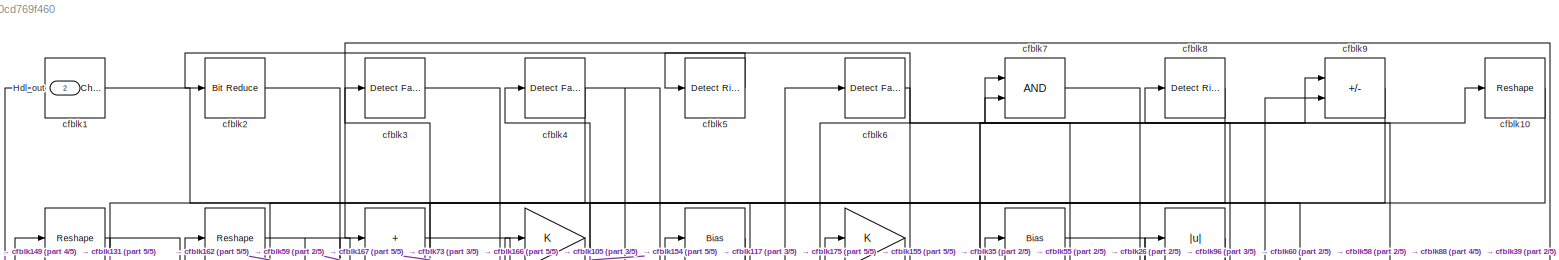
[diagram: root canvas - part 1/5, full width, top band]
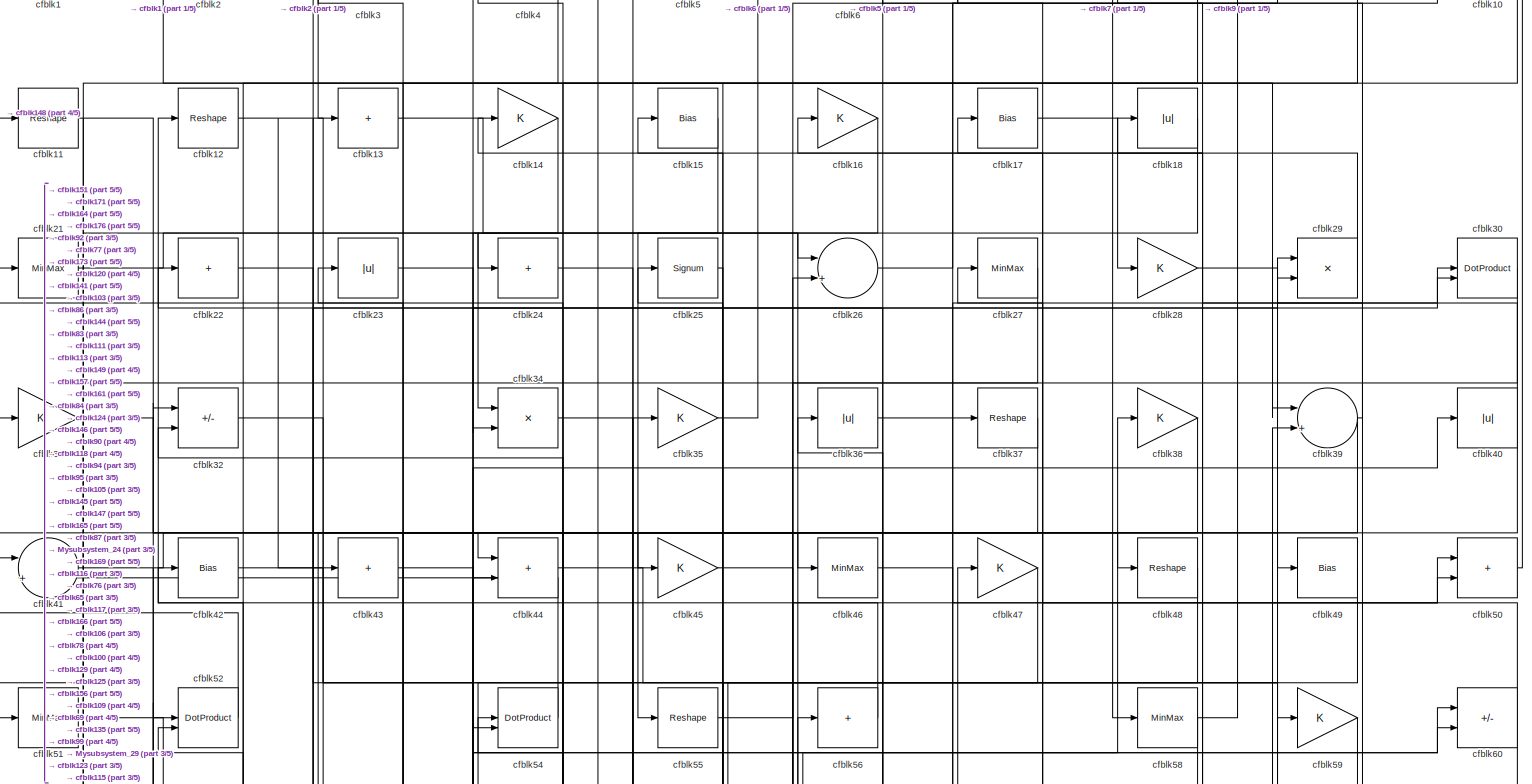
[diagram: root canvas - part 2/5, full width, top band]
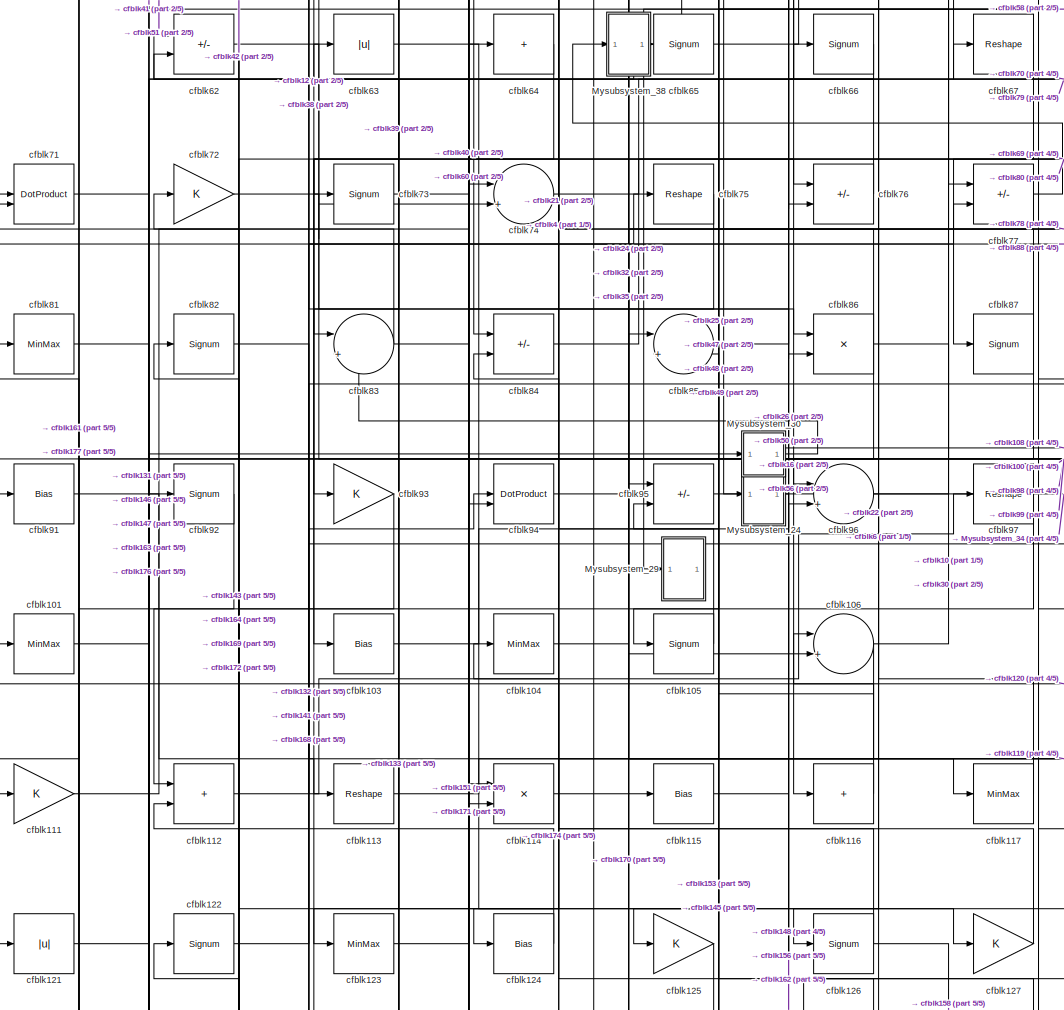
[diagram: root canvas - part 3/5, central region]
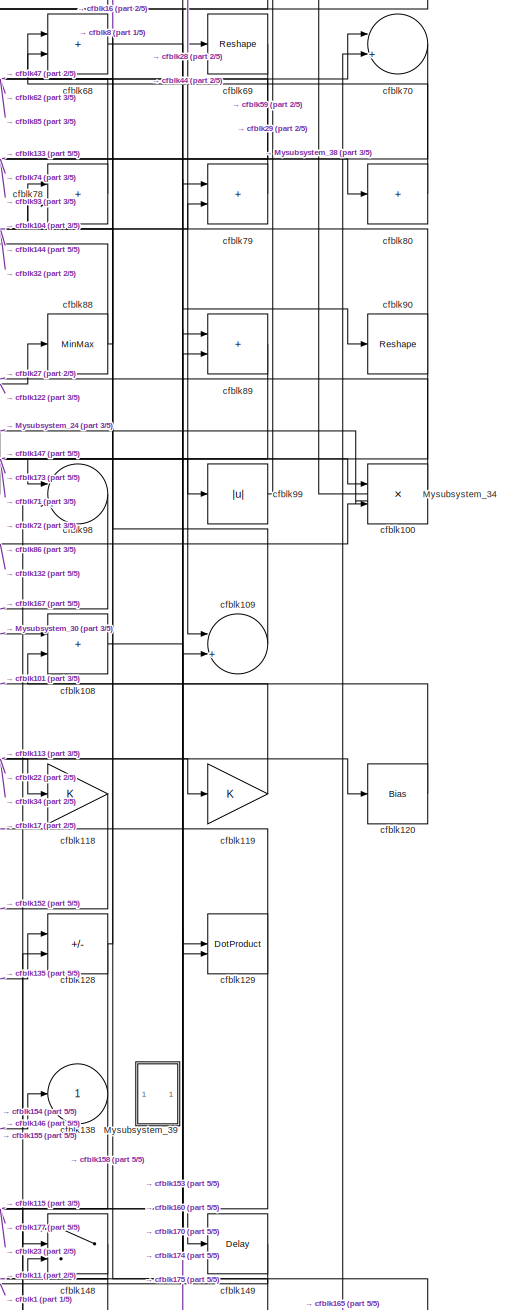
[diagram: root canvas - part 4/5, middle right region]
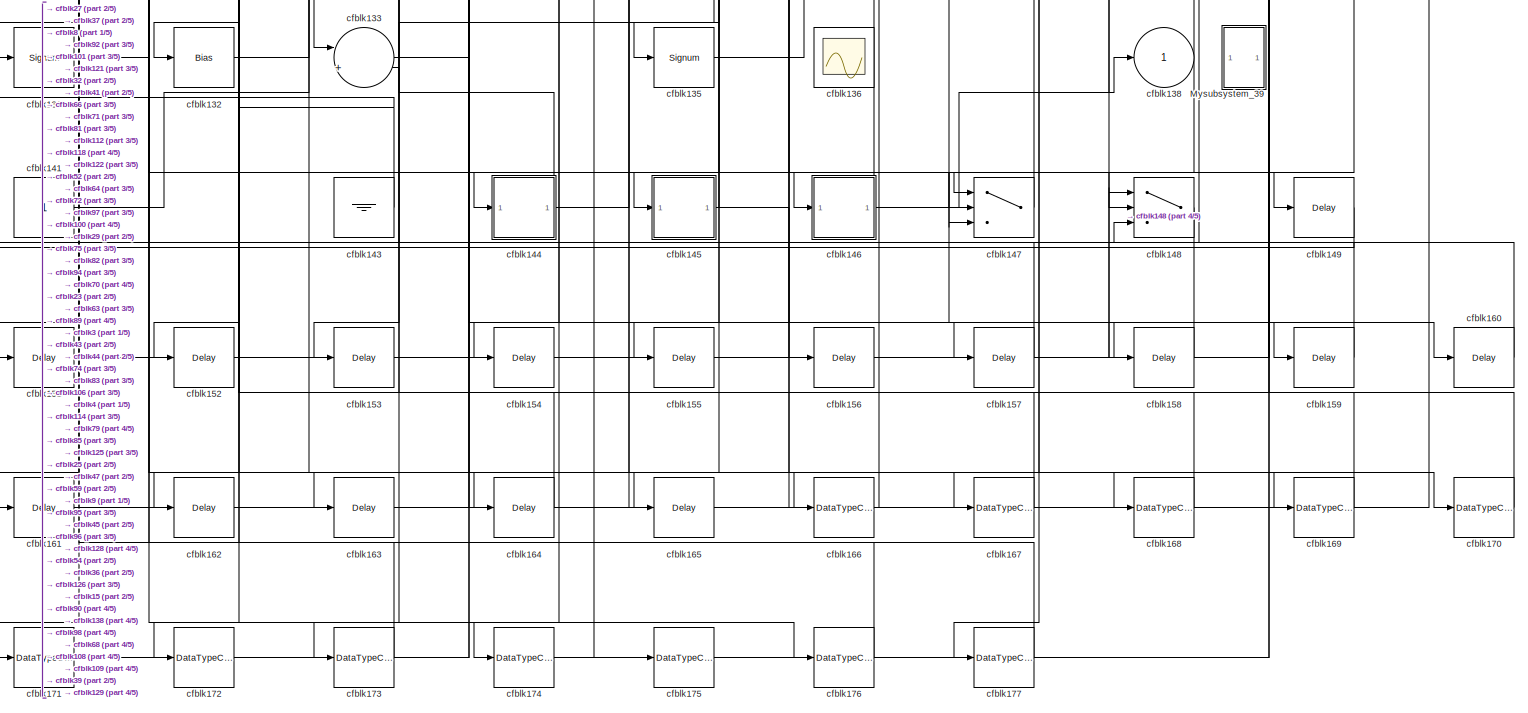
[diagram: root canvas - part 5/5, full width, bottom band]
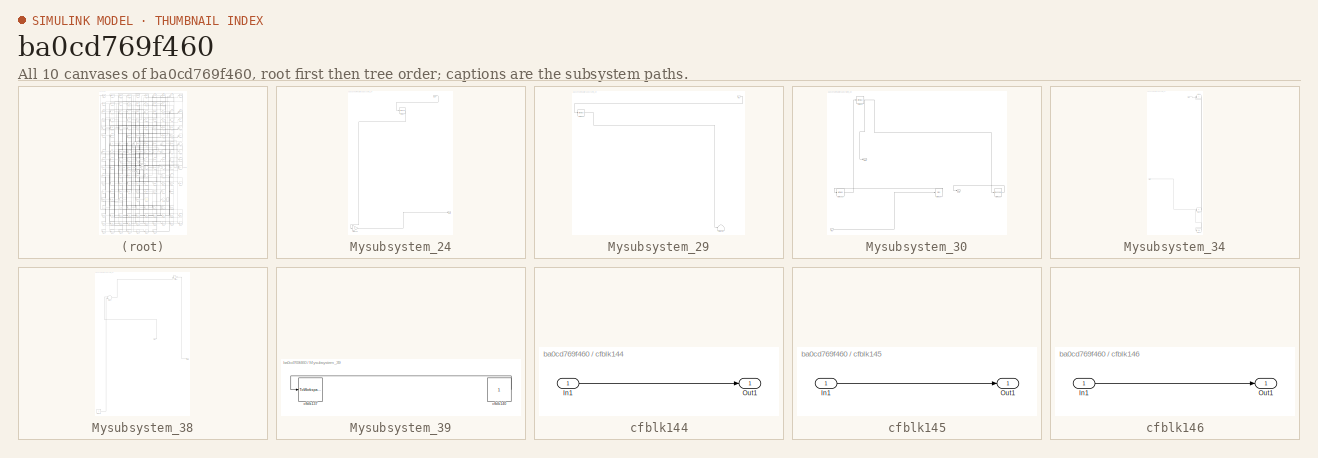
[diagram: thumbnail index - all 10 canvases of the model, root first then tree order]
MODEL slx_ba0cd769f460
KIND model
CONFIG AbsTol = auto
CONFIG EnableMultiTasking = off
CONFIG FixedStep = auto
CONFIG MaxStep = auto
CONFIG MinStep = auto
CONFIG RelTol = 1e-3
CONFIG SampleTimeConstraint = Unconstrained
CONFIG SolverName = VariableStepAuto
CONFIG StartTime = 0.0
CONFIG StopTime = 10.0
BLOCK [Outport] Hdl_out
  OutDataTypeStr = uint8
  Port = 2
BLOCK [SubSystem] Mysubsystem_24
  RTWFcnName = Mysubsystem_24
  RTWFcnNameOpts = User specified
  RTWFileNameOpts = Use function name
  RTWSystemCode = Reusable function
  TreatAsAtomicUnit = on
BLOCK [Inport] Mysubsystem_24/In1
BLOCK [Outport] Mysubsystem_24/Out1
BLOCK [Gain] Mysubsystem_24/cfblk134
BLOCK [Signum] Mysubsystem_24/cfblk57
BLOCK [SubSystem] Mysubsystem_29
  RTWFcnName = Mysubsystem_29
  RTWFcnNameOpts = User specified
  RTWFileNameOpts = Use function name
  RTWSystemCode = Reusable function
  TreatAsAtomicUnit = on
BLOCK [Inport] Mysubsystem_29/In1
BLOCK [Terminator] Mysubsystem_29/cfblk139
BLOCK [MinMax] Mysubsystem_29/cfblk61
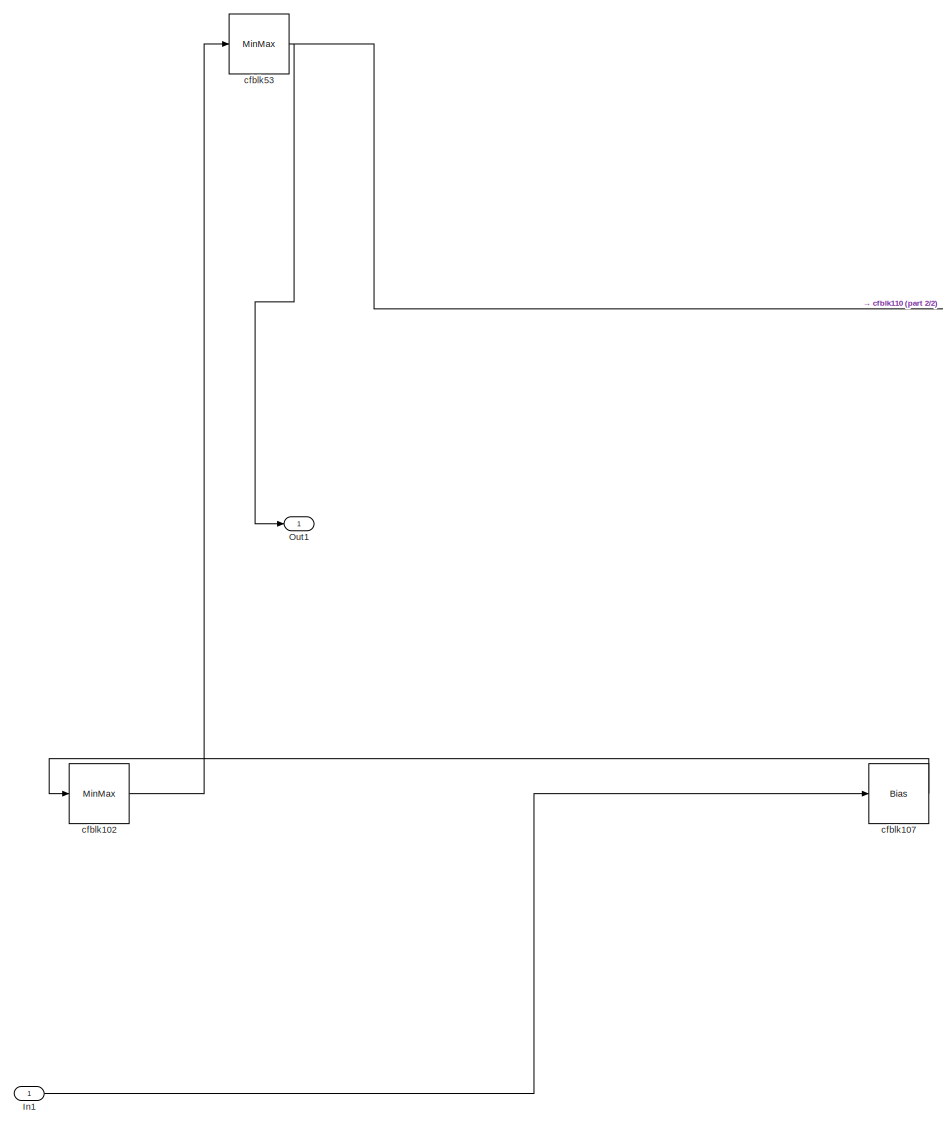
[diagram: Mysubsystem_30 - part 1/2, left side, full height]
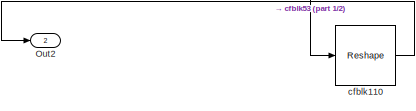
[diagram: Mysubsystem_30 - part 2/2, bottom right region]
BLOCK [SubSystem] Mysubsystem_30
  RTWFcnName = Mysubsystem_30
  RTWFcnNameOpts = User specified
  RTWFileNameOpts = Use function name
  RTWSystemCode = Reusable function
  TreatAsAtomicUnit = on
BLOCK [Inport] Mysubsystem_30/In1
BLOCK [Outport] Mysubsystem_30/Out1
BLOCK [Outport] Mysubsystem_30/Out2
  Port = 2
BLOCK [MinMax] Mysubsystem_30/cfblk102
BLOCK [Bias] Mysubsystem_30/cfblk107
  Bias = 0.0
  SaturateOnIntegerOverflow = off
BLOCK [Reshape] Mysubsystem_30/cfblk110
BLOCK [MinMax] Mysubsystem_30/cfblk53
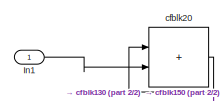
[diagram: Mysubsystem_34 - part 1/2, top right region]
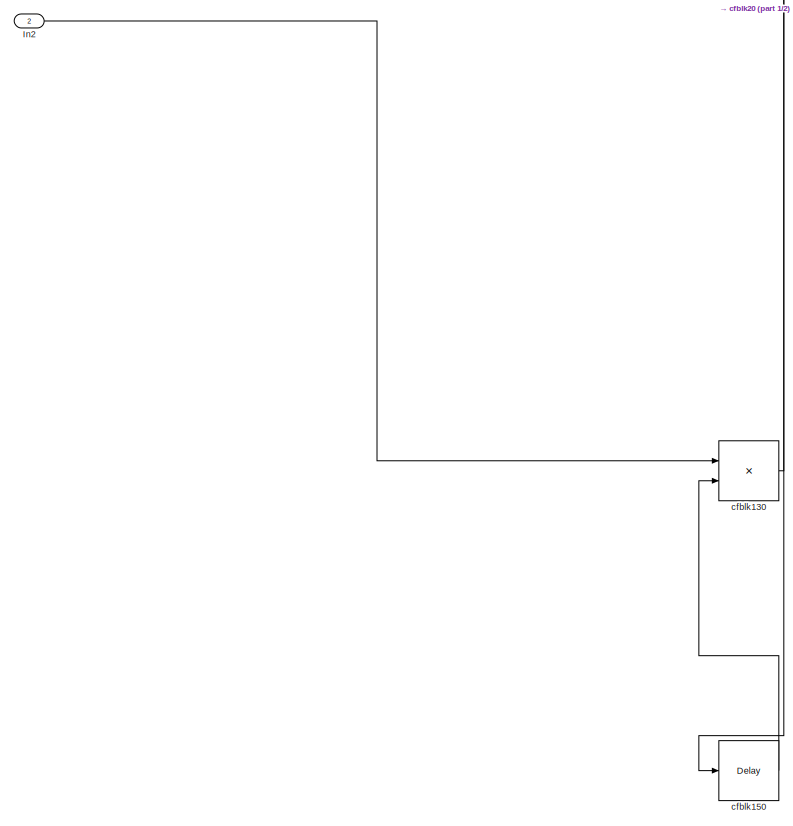
[diagram: Mysubsystem_34 - part 2/2, full width, bottom band]
BLOCK [SubSystem] Mysubsystem_34
  RTWFcnName = Mysubsystem_34
  RTWFcnNameOpts = User specified
  RTWFileNameOpts = Use function name
  RTWSystemCode = Reusable function
  TreatAsAtomicUnit = on
BLOCK [Inport] Mysubsystem_34/In1
BLOCK [Inport] Mysubsystem_34/In2
  Port = 2
BLOCK [Product] Mysubsystem_34/cfblk130
  Inputs = */
  RndMeth = Zero
  SaturateOnIntegerOverflow = on
BLOCK [Delay] Mysubsystem_34/cfblk150
  InputPortMap = u0
  SampleTime = 1
BLOCK [Sum] Mysubsystem_34/cfblk20
  IconShape = rectangular
BLOCK [SubSystem] Mysubsystem_38
  RTWFcnName = Mysubsystem_38
  RTWFcnNameOpts = User specified
  RTWFileNameOpts = Use function name
  RTWSystemCode = Reusable function
  TreatAsAtomicUnit = on
BLOCK [Inport] Mysubsystem_38/In1
BLOCK [Outport] Mysubsystem_38/Out1
BLOCK [Constant] Mysubsystem_38/cfblk142
  SampleTime = -1
BLOCK [Gain] Mysubsystem_38/cfblk19
BLOCK [Sum] Mysubsystem_38/cfblk33
  Inputs = |++
BLOCK [SubSystem] Mysubsystem_39
  RTWFcnName = Mysubsystem_39
  RTWFcnNameOpts = User specified
  RTWFileNameOpts = Use function name
  RTWSystemCode = Reusable function
  TreatAsAtomicUnit = on
BLOCK [ToWorkspace] Mysubsystem_39/cfblk137
  MaxDataPoints = inf
  SampleTime = -1
  SaveFormat = Timeseries
  VariableName = simout
BLOCK [Constant] Mysubsystem_39/cfblk140
  SampleTime = -1
BLOCK [Reference] cfblk1  REF=simulink/Logic and Bit
Operations/Detect
Change
  LibrarySourceBlock = hdlsllib/Logic and Bit\nOperations/Detect\nChange
  SourceBlock = simulink/Logic and Bit\nOperations/Detect\nChange
  SourceType = Detect Change
BLOCK [Reshape] cfblk10
BLOCK [Product] cfblk100
  Inputs = */
  OutDataTypeStr = uint8
  RndMeth = Zero
  SaturateOnIntegerOverflow = on
BLOCK [MinMax] cfblk101
  OutDataTypeStr = uint8
BLOCK [Bias] cfblk103
  Bias = 0.0
  SaturateOnIntegerOverflow = off
BLOCK [MinMax] cfblk104
  OutDataTypeStr = uint8
BLOCK [Signum] cfblk105
BLOCK [Sum] cfblk106
  Inputs = |++
  OutDataTypeStr = uint8
BLOCK [Sum] cfblk108
  IconShape = rectangular
  OutDataTypeStr = uint8
BLOCK [Sum] cfblk109
  Inputs = |++
  OutDataTypeStr = uint8
BLOCK [Reshape] cfblk11
BLOCK [Gain] cfblk111
  OutDataTypeStr = uint8
BLOCK [Sum] cfblk112
  IconShape = rectangular
  OutDataTypeStr = uint8
BLOCK [Reshape] cfblk113
BLOCK [Product] cfblk114
  Inputs = */
  OutDataTypeStr = uint8
  RndMeth = Zero
  SaturateOnIntegerOverflow = on
BLOCK [Bias] cfblk115
  Bias = 0.0
  SaturateOnIntegerOverflow = off
BLOCK [Sum] cfblk116
  IconShape = rectangular
  Inputs = +
  OutDataTypeStr = uint8
BLOCK [MinMax] cfblk117
  OutDataTypeStr = uint8
BLOCK [Gain] cfblk118
  OutDataTypeStr = uint8
BLOCK [Gain] cfblk119
  OutDataTypeStr = uint8
BLOCK [Reshape] cfblk12
BLOCK [Bias] cfblk120
  Bias = 0.0
  SaturateOnIntegerOverflow = off
BLOCK [Abs] cfblk121
  OutDataTypeStr = uint8
  SaturateOnIntegerOverflow = off
BLOCK [Signum] cfblk122
BLOCK [MinMax] cfblk123
  OutDataTypeStr = uint8
BLOCK [Bias] cfblk124
  Bias = 0.0
  SaturateOnIntegerOverflow = off
BLOCK [Gain] cfblk125
  OutDataTypeStr = uint8
BLOCK [Signum] cfblk126
BLOCK [Gain] cfblk127
  OutDataTypeStr = uint8
BLOCK [Sum] cfblk128
  IconShape = rectangular
  Inputs = +-
  OutDataTypeStr = uint8
BLOCK [DotProduct] cfblk129
  OutDataTypeStr = uint8
BLOCK [Sum] cfblk13
  IconShape = rectangular
  Inputs = +
  OutDataTypeStr = uint8
BLOCK [Signum] cfblk131
BLOCK [Bias] cfblk132
  Bias = 0.0
  SaturateOnIntegerOverflow = off
BLOCK [Sum] cfblk133
  Inputs = |++
  OutDataTypeStr = uint8
BLOCK [Signum] cfblk135
BLOCK [Scope] cfblk136
  Floating = on
  NumInputPorts = 1
  ScopeSpecificationString = Simulink.scopes.TimeScopeBlockCfg('CurrentConfiguration', extmgr.ConfigurationSet(extmgr.Configuration('Core','General UI',true,'FigureColor',[0.156862745098039 0.156862745098039 0.156862745098039]),extmgr.Configuration('Core','Source UI',true),extmgr.Configuration('Sources','WiredSimulink',true,'DataLoggingVariableName','ScopeData1','DataLoggingSaveFormat','StructureWithTime','DataLoggingLimitDat...<+2713ch>
BLOCK [Outport] cfblk138
  OutDataTypeStr = uint8
  VectorParamsAs1DForOutWhenUnconnected = off
BLOCK [Gain] cfblk14
  OutDataTypeStr = uint8
BLOCK [Constant] cfblk141
  OutDataTypeStr = uint8
  SampleTime = -1
BLOCK [Ground] cfblk143
BLOCK [SubSystem] cfblk144
  LibrarySourceBlock = hdlsllib/Ports &\nSubsystems/Subsystem
BLOCK [Inport] cfblk144/In1
BLOCK [Outport] cfblk144/Out1
BLOCK [SubSystem] cfblk145
  LibrarySourceBlock = hdlsllib/Ports &\nSubsystems/Subsystem
BLOCK [Inport] cfblk145/In1
BLOCK [Outport] cfblk145/Out1
BLOCK [SubSystem] cfblk146
  LibrarySourceBlock = hdlsllib/Ports &\nSubsystems/Subsystem
BLOCK [Inport] cfblk146/In1
BLOCK [Outport] cfblk146/Out1
BLOCK [Switch] cfblk147
  InputSameDT = off
  OutDataTypeStr = uint8
  SaturateOnIntegerOverflow = off
BLOCK [Switch] cfblk148
  InputSameDT = off
  OutDataTypeStr = uint8
  SaturateOnIntegerOverflow = off
BLOCK [Delay] cfblk149
  InputPortMap = u0
  SampleTime = 1
BLOCK [Bias] cfblk15
  Bias = 0.0
  SaturateOnIntegerOverflow = off
BLOCK [Delay] cfblk151
  InputPortMap = u0
  SampleTime = 1
BLOCK [Delay] cfblk152
  InputPortMap = u0
  SampleTime = 1
BLOCK [Delay] cfblk153
  InputPortMap = u0
  SampleTime = 1
BLOCK [Delay] cfblk154
  InputPortMap = u0
  SampleTime = 1
BLOCK [Delay] cfblk155
  InputPortMap = u0
  SampleTime = 1
BLOCK [Delay] cfblk156
  InputPortMap = u0
  SampleTime = 1
BLOCK [Delay] cfblk157
  InputPortMap = u0
  SampleTime = 1
BLOCK [Delay] cfblk158
  InputPortMap = u0
  SampleTime = 1
BLOCK [Delay] cfblk159
  InputPortMap = u0
  SampleTime = 1
BLOCK [Gain] cfblk16
  OutDataTypeStr = uint8
BLOCK [Delay] cfblk160
  InputPortMap = u0
  SampleTime = 1
BLOCK [Delay] cfblk161
  InputPortMap = u0
  SampleTime = 1
BLOCK [Delay] cfblk162
  InputPortMap = u0
  SampleTime = 1
BLOCK [Delay] cfblk163
  InputPortMap = u0
  SampleTime = 1
BLOCK [Delay] cfblk164
  InputPortMap = u0
  SampleTime = 1
BLOCK [Delay] cfblk165
  InputPortMap = u0
  SampleTime = 1
BLOCK [DataTypeConversion] cfblk166
  OutDataTypeStr = uint8
  RndMeth = Floor
  SaturateOnIntegerOverflow = off
BLOCK [DataTypeConversion] cfblk167
  OutDataTypeStr = uint8
  RndMeth = Floor
  SaturateOnIntegerOverflow = off
BLOCK [DataTypeConversion] cfblk168
  OutDataTypeStr = uint8
  RndMeth = Floor
  SaturateOnIntegerOverflow = off
BLOCK [DataTypeConversion] cfblk169
  OutDataTypeStr = uint8
  RndMeth = Floor
  SaturateOnIntegerOverflow = off
BLOCK [Bias] cfblk17
  Bias = 0.0
  SaturateOnIntegerOverflow = off
BLOCK [DataTypeConversion] cfblk170
  OutDataTypeStr = uint8
  RndMeth = Floor
  SaturateOnIntegerOverflow = off
BLOCK [DataTypeConversion] cfblk171
  OutDataTypeStr = uint8
  RndMeth = Floor
  SaturateOnIntegerOverflow = off
BLOCK [DataTypeConversion] cfblk172
  OutDataTypeStr = uint8
  RndMeth = Floor
  SaturateOnIntegerOverflow = off
BLOCK [DataTypeConversion] cfblk173
  OutDataTypeStr = uint8
  RndMeth = Floor
  SaturateOnIntegerOverflow = off
BLOCK [DataTypeConversion] cfblk174
  OutDataTypeStr = uint8
  RndMeth = Floor
  SaturateOnIntegerOverflow = off
BLOCK [DataTypeConversion] cfblk175
  OutDataTypeStr = uint8
  RndMeth = Floor
  SaturateOnIntegerOverflow = off
BLOCK [DataTypeConversion] cfblk176
  OutDataTypeStr = uint8
  RndMeth = Floor
  SaturateOnIntegerOverflow = off
BLOCK [DataTypeConversion] cfblk177
  OutDataTypeStr = uint8
  RndMeth = Floor
  SaturateOnIntegerOverflow = off
BLOCK [Abs] cfblk18
  OutDataTypeStr = uint8
  SaturateOnIntegerOverflow = off
BLOCK [Reference] cfblk2  REF=hdlsllib/Logic and Bit
Operations/Bit Reduce
  SourceBlock = hdlsllib/Logic and Bit\nOperations/Bit Reduce
  SourceType = Bit Reduce
BLOCK [MinMax] cfblk21
  OutDataTypeStr = uint8
BLOCK [Sum] cfblk22
  IconShape = rectangular
  Inputs = +
  OutDataTypeStr = uint8
BLOCK [Abs] cfblk23
  OutDataTypeStr = uint8
  SaturateOnIntegerOverflow = off
BLOCK [Sum] cfblk24
  IconShape = rectangular
  Inputs = +
  OutDataTypeStr = uint8
BLOCK [Signum] cfblk25
BLOCK [Sum] cfblk26
  Inputs = |++
  OutDataTypeStr = uint8
BLOCK [MinMax] cfblk27
  OutDataTypeStr = uint8
BLOCK [Gain] cfblk28
  OutDataTypeStr = uint8
BLOCK [Product] cfblk29
  Inputs = */
  OutDataTypeStr = uint8
  RndMeth = Zero
  SaturateOnIntegerOverflow = on
BLOCK [Reference] cfblk3  REF=hdlsllib/Logic and Bit
Operations/Detect Fall
Negative
  SourceBlock = hdlsllib/Logic and Bit\nOperations/Detect Fall\nNegative
  SourceType = Detect Fall Negative
BLOCK [DotProduct] cfblk30
  OutDataTypeStr = uint8
BLOCK [Gain] cfblk31
  OutDataTypeStr = uint8
BLOCK [Sum] cfblk32
  IconShape = rectangular
  Inputs = +-
  OutDataTypeStr = uint8
BLOCK [Product] cfblk34
  Inputs = */
  OutDataTypeStr = uint8
  RndMeth = Zero
  SaturateOnIntegerOverflow = on
BLOCK [Gain] cfblk35
  OutDataTypeStr = uint8
BLOCK [Abs] cfblk36
  OutDataTypeStr = uint8
  SaturateOnIntegerOverflow = off
BLOCK [Reshape] cfblk37
BLOCK [Gain] cfblk38
  OutDataTypeStr = uint8
BLOCK [Sum] cfblk39
  Inputs = |++
  OutDataTypeStr = uint8
BLOCK [Reference] cfblk4  REF=hdlsllib/Logic and Bit
Operations/Detect Fall
Negative
  SourceBlock = hdlsllib/Logic and Bit\nOperations/Detect Fall\nNegative
  SourceType = Detect Fall Negative
BLOCK [Abs] cfblk40
  OutDataTypeStr = uint8
  SaturateOnIntegerOverflow = off
BLOCK [Sum] cfblk41
  Inputs = |++
  OutDataTypeStr = uint8
BLOCK [Bias] cfblk42
  Bias = 0.0
  SaturateOnIntegerOverflow = off
BLOCK [Sum] cfblk43
  IconShape = rectangular
  Inputs = +
  OutDataTypeStr = uint8
BLOCK [Sum] cfblk44
  IconShape = rectangular
  OutDataTypeStr = uint8
BLOCK [Gain] cfblk45
  OutDataTypeStr = uint8
BLOCK [MinMax] cfblk46
  OutDataTypeStr = uint8
BLOCK [Gain] cfblk47
  OutDataTypeStr = uint8
BLOCK [Reshape] cfblk48
BLOCK [Bias] cfblk49
  Bias = 0.0
  SaturateOnIntegerOverflow = off
BLOCK [Reference] cfblk5  REF=hdlsllib/Logic and Bit
Operations/Detect Rise
Positive
  SourceBlock = hdlsllib/Logic and Bit\nOperations/Detect Rise\nPositive
  SourceType = Detect Rise Positive
BLOCK [Sum] cfblk50
  IconShape = rectangular
  OutDataTypeStr = uint8
BLOCK [MinMax] cfblk51
  OutDataTypeStr = uint8
BLOCK [DotProduct] cfblk52
  OutDataTypeStr = uint8
BLOCK [DotProduct] cfblk54
  OutDataTypeStr = uint8
BLOCK [Reshape] cfblk55
BLOCK [Sum] cfblk56
  IconShape = rectangular
  Inputs = +
  OutDataTypeStr = uint8
BLOCK [MinMax] cfblk58
  OutDataTypeStr = uint8
BLOCK [Gain] cfblk59
  OutDataTypeStr = uint8
BLOCK [Reference] cfblk6  REF=hdlsllib/Logic and Bit
Operations/Detect Fall
Nonpositive
  SourceBlock = hdlsllib/Logic and Bit\nOperations/Detect Fall\nNonpositive
  SourceType = Detect Fall Nonpositive
BLOCK [Sum] cfblk60
  IconShape = rectangular
  Inputs = +-
  OutDataTypeStr = uint8
BLOCK [Sum] cfblk62
  IconShape = rectangular
  Inputs = +-
  OutDataTypeStr = uint8
BLOCK [Abs] cfblk63
  OutDataTypeStr = uint8
  SaturateOnIntegerOverflow = off
BLOCK [Sum] cfblk64
  IconShape = rectangular
  Inputs = +
  OutDataTypeStr = uint8
BLOCK [Signum] cfblk65
BLOCK [Signum] cfblk66
BLOCK [Reshape] cfblk67
BLOCK [Sum] cfblk68
  IconShape = rectangular
  OutDataTypeStr = uint8
BLOCK [Reshape] cfblk69
BLOCK [Logic] cfblk7
  AllPortsSameDT = off
  OutDataTypeStr = boolean
BLOCK [Sum] cfblk70
  Inputs = |++
  OutDataTypeStr = uint8
BLOCK [DotProduct] cfblk71
  OutDataTypeStr = uint8
BLOCK [Gain] cfblk72
  OutDataTypeStr = uint8
BLOCK [Signum] cfblk73
BLOCK [Sum] cfblk74
  Inputs = |++
  OutDataTypeStr = uint8
BLOCK [Reshape] cfblk75
BLOCK [Sum] cfblk76
  IconShape = rectangular
  Inputs = +-
  OutDataTypeStr = uint8
BLOCK [Sum] cfblk77
  IconShape = rectangular
  Inputs = +-
  OutDataTypeStr = uint8
BLOCK [Sum] cfblk78
  IconShape = rectangular
  OutDataTypeStr = uint8
BLOCK [Sum] cfblk79
  IconShape = rectangular
  OutDataTypeStr = uint8
BLOCK [Reference] cfblk8  REF=hdlsllib/Logic and Bit
Operations/Detect Rise
Positive
  SourceBlock = hdlsllib/Logic and Bit\nOperations/Detect Rise\nPositive
  SourceType = Detect Rise Positive
BLOCK [Sum] cfblk80
  IconShape = rectangular
  Inputs = +
  OutDataTypeStr = uint8
BLOCK [MinMax] cfblk81
  OutDataTypeStr = uint8
BLOCK [Signum] cfblk82
BLOCK [Sum] cfblk83
  Inputs = |++
  OutDataTypeStr = uint8
BLOCK [Sum] cfblk84
  IconShape = rectangular
  Inputs = +-
  OutDataTypeStr = uint8
BLOCK [Sum] cfblk85
  Inputs = |++
  OutDataTypeStr = uint8
BLOCK [Product] cfblk86
  Inputs = */
  OutDataTypeStr = uint8
  RndMeth = Zero
  SaturateOnIntegerOverflow = on
BLOCK [Signum] cfblk87
BLOCK [MinMax] cfblk88
  OutDataTypeStr = uint8
BLOCK [Sum] cfblk89
  IconShape = rectangular
  OutDataTypeStr = uint8
BLOCK [Sum] cfblk9
  IconShape = rectangular
  Inputs = +-
  OutDataTypeStr = uint8
BLOCK [Reshape] cfblk90
BLOCK [Bias] cfblk91
  Bias = 0.0
  SaturateOnIntegerOverflow = off
BLOCK [Signum] cfblk92
BLOCK [Gain] cfblk93
  OutDataTypeStr = uint8
BLOCK [DotProduct] cfblk94
  OutDataTypeStr = uint8
BLOCK [Sum] cfblk95
  IconShape = rectangular
  Inputs = +-
  OutDataTypeStr = uint8
BLOCK [Sum] cfblk96
  Inputs = |++
  OutDataTypeStr = uint8
BLOCK [Reshape] cfblk97
BLOCK [Sum] cfblk98
  Inputs = |++
  OutDataTypeStr = uint8
BLOCK [Abs] cfblk99
  OutDataTypeStr = uint8
  SaturateOnIntegerOverflow = off
LINE Mysubsystem_24/In1:1 -> Mysubsystem_24/cfblk57:1
LINE Mysubsystem_24/cfblk134:1 -> Mysubsystem_24/Out1:1
LINE Mysubsystem_24/cfblk57:1 -> Mysubsystem_24/cfblk134:1
LINE Mysubsystem_24:1 -> Mysubsystem_34:2
LINE Mysubsystem_29/In1:1 -> Mysubsystem_29/cfblk61:1
LINE Mysubsystem_29/cfblk61:1 -> Mysubsystem_29/cfblk139:1
LINE Mysubsystem_30/In1:1 -> Mysubsystem_30/cfblk107:1
LINE Mysubsystem_30/cfblk102:1 -> Mysubsystem_30/cfblk53:1
LINE Mysubsystem_30/cfblk107:1 -> Mysubsystem_30/cfblk102:1
LINE Mysubsystem_30/cfblk110:1 -> Mysubsystem_30/Out2:1
NET Mysubsystem_30/cfblk53:1 -> Mysubsystem_30/Out1:1, Mysubsystem_30/cfblk110:1
LINE Mysubsystem_30:1 -> cfblk83:2
LINE Mysubsystem_30:2 -> cfblk108:1
LINE Mysubsystem_34/In1:1 -> Mysubsystem_34/cfblk20:2
LINE Mysubsystem_34/In2:1 -> Mysubsystem_34/cfblk130:1
LINE Mysubsystem_34/cfblk130:1 -> Mysubsystem_34/cfblk20:1
LINE Mysubsystem_34/cfblk150:1 -> Mysubsystem_34/cfblk130:2
LINE Mysubsystem_34/cfblk20:1 -> Mysubsystem_34/cfblk150:1
LINE Mysubsystem_38/In1:1 -> Mysubsystem_38/cfblk33:1
LINE Mysubsystem_38/cfblk142:1 -> Mysubsystem_38/cfblk33:2
LINE Mysubsystem_38/cfblk19:1 -> Mysubsystem_38/Out1:1
LINE Mysubsystem_38/cfblk33:1 -> Mysubsystem_38/cfblk19:1
LINE Mysubsystem_38:1 -> Mysubsystem_34:1
LINE Mysubsystem_39/cfblk140:1 -> Mysubsystem_39/cfblk137:1
LINE cfblk100:1 -> cfblk27:1
LINE cfblk101:1 -> cfblk163:1
LINE cfblk103:1 -> cfblk50:1
NET cfblk104:1 -> cfblk106:2, cfblk78:1
LINE cfblk105:1 -> cfblk4:1
NET cfblk106:1 -> cfblk174:1, cfblk30:1
LINE cfblk108:1 -> cfblk160:1
LINE cfblk109:1 -> cfblk16:1
LINE cfblk10:1 -> cfblk73:1
LINE cfblk111:1 -> cfblk60:2
NET cfblk112:1 -> cfblk77:2, cfblk97:1
NET cfblk113:1 -> cfblk119:1, cfblk40:1
LINE cfblk114:1 -> cfblk170:1
NET cfblk115:1 -> cfblk148:2, cfblk26:2
NET cfblk116:1 -> cfblk106:1, cfblk85:2
LINE cfblk117:1 -> cfblk22:1
LINE cfblk118:1 -> cfblk152:1
LINE cfblk119:1 -> cfblk108:2
NET cfblk11:1 -> cfblk44:1, cfblk51:1
LINE cfblk120:1 -> cfblk101:1
NET cfblk121:1 -> Mysubsystem_30:1, cfblk147:2
LINE cfblk122:1 -> cfblk88:1
LINE cfblk123:1 -> cfblk30:2
NET cfblk124:1 -> cfblk123:1, cfblk42:1
LINE cfblk125:1 -> cfblk153:1
NET cfblk126:1 -> cfblk158:1, cfblk84:2
LINE cfblk127:1 -> cfblk104:1
NET cfblk128:1 -> cfblk144:1, cfblk78:2
NET cfblk129:1 -> cfblk177:1, cfblk17:1
NET cfblk12:1 -> cfblk43:1, cfblk86:1, cfblk86:2
LINE cfblk131:1 -> cfblk66:1
NET cfblk132:1 -> cfblk100:2, cfblk94:1
NET cfblk133:1 -> cfblk63:1, cfblk64:1
LINE cfblk135:1 -> cfblk128:1
LINE cfblk13:1 -> cfblk26:1
NET cfblk141:1 -> cfblk29:2, cfblk75:1
NET cfblk143:1 -> cfblk121:1, cfblk122:1
LINE cfblk144/In1:1 -> cfblk144/Out1:1
NET cfblk144:1 -> cfblk23:1, cfblk79:2
LINE cfblk145/In1:1 -> cfblk145/Out1:1
NET cfblk145:1 -> cfblk159:1, cfblk95:2
LINE cfblk146/In1:1 -> cfblk146/Out1:1
NET cfblk146:1 -> cfblk138:1, cfblk54:1, cfblk98:2
LINE cfblk147:1 -> cfblk15:1
LINE cfblk148:1 -> cfblk11:1
LINE cfblk149:1 -> cfblk1:1
LINE cfblk14:1 -> cfblk34:1
LINE cfblk151:1 -> cfblk74:1
LINE cfblk152:1 -> cfblk109:2
LINE cfblk153:1 -> cfblk79:1
LINE cfblk154:1 -> cfblk148:1
LINE cfblk155:1 -> cfblk128:2
LINE cfblk156:1 -> cfblk39:2
LINE cfblk157:1 -> cfblk32:1
LINE cfblk158:1 -> cfblk148:3
LINE cfblk159:1 -> cfblk133:2
LINE cfblk15:1 -> cfblk55:1
LINE cfblk160:1 -> cfblk68:2
LINE cfblk161:1 -> cfblk44:2
LINE cfblk162:1 -> cfblk96:2
LINE cfblk163:1 -> cfblk85:1
LINE cfblk164:1 -> cfblk112:2
LINE cfblk165:1 -> cfblk70:2
LINE cfblk166:1 -> cfblk36:1
LINE cfblk167:1 -> cfblk3:1
LINE cfblk168:1 -> cfblk72:1
LINE cfblk169:1 -> cfblk82:1
NET cfblk16:1 -> cfblk116:1, cfblk34:2
LINE cfblk170:1 -> cfblk129:1
LINE cfblk171:1 -> cfblk114:1
LINE cfblk172:1 -> cfblk114:2
LINE cfblk173:1 -> cfblk52:2
LINE cfblk174:1 -> cfblk89:1
LINE cfblk175:1 -> cfblk89:2
LINE cfblk176:1 -> cfblk52:1
LINE cfblk177:1 -> cfblk81:1
LINE cfblk17:1 -> cfblk28:1
LINE cfblk18:1 -> cfblk41:1
LINE cfblk1:1 -> cfblk39:1
LINE cfblk21:1 -> cfblk24:1
NET cfblk22:1 -> cfblk120:1, cfblk46:1
LINE cfblk23:1 -> cfblk149:1
LINE cfblk24:1 -> cfblk95:1
LINE cfblk25:1 -> cfblk145:1
LINE cfblk26:1 -> cfblk9:1
LINE cfblk27:1 -> cfblk151:1
LINE cfblk28:1 -> cfblk109:1
LINE cfblk29:1 -> cfblk14:1
LINE cfblk2:1 -> cfblk59:1
LINE cfblk30:1 -> cfblk76:2
NET cfblk31:1 -> cfblk45:1, cfblk49:1
LINE cfblk32:1 -> cfblk115:1
LINE cfblk34:1 -> cfblk118:1
LINE cfblk35:1 -> cfblk6:1
LINE cfblk36:1 -> cfblk37:1
LINE cfblk37:1 -> cfblk171:1
LINE cfblk38:1 -> cfblk103:1
NET cfblk39:1 -> cfblk5:1, cfblk83:1
LINE cfblk3:1 -> cfblk166:1
NET cfblk40:1 -> cfblk124:1, cfblk18:1
NET cfblk41:1 -> cfblk164:1, cfblk48:1, cfblk92:1
LINE cfblk42:1 -> cfblk54:2
LINE cfblk43:1 -> cfblk157:1
LINE cfblk44:1 -> cfblk69:1
LINE cfblk45:1 -> cfblk169:1
LINE cfblk46:1 -> cfblk50:2
NET cfblk47:1 -> cfblk165:1, cfblk84:1
LINE cfblk48:1 -> cfblk105:1
LINE cfblk49:1 -> Mysubsystem_24:1
NET cfblk4:1 -> cfblk117:1, cfblk162:1, cfblk175:1
LINE cfblk50:1 -> cfblk13:1
LINE cfblk51:1 -> cfblk77:1
LINE cfblk52:1 -> cfblk31:1
LINE cfblk54:1 -> cfblk41:2
LINE cfblk55:1 -> cfblk7:1
LINE cfblk56:1 -> cfblk12:1
NET cfblk58:1 -> cfblk125:1, cfblk9:2
NET cfblk59:1 -> cfblk129:2, cfblk135:1
LINE cfblk5:1 -> cfblk2:1
NET cfblk60:1 -> Mysubsystem_29:1, cfblk7:2
LINE cfblk62:1 -> cfblk74:2
LINE cfblk63:1 -> cfblk127:1
LINE cfblk64:1 -> cfblk132:1
LINE cfblk65:1 -> cfblk38:1
LINE cfblk66:1 -> cfblk62:2
LINE cfblk67:1 -> cfblk87:1
LINE cfblk68:1 -> cfblk90:1
LINE cfblk69:1 -> cfblk93:1
LINE cfblk6:1 -> cfblk96:1
LINE cfblk70:1 -> cfblk133:1
NET cfblk71:1 -> cfblk146:1, cfblk65:1, cfblk98:1
LINE cfblk72:1 -> cfblk100:1
LINE cfblk73:1 -> cfblk76:1
LINE cfblk74:1 -> cfblk80:1
LINE cfblk75:1 -> cfblk94:2
LINE cfblk76:1 -> cfblk56:1
LINE cfblk77:1 -> Mysubsystem_38:1
LINE cfblk78:1 -> cfblk47:1
LINE cfblk79:1 -> cfblk62:1
LINE cfblk7:1 -> cfblk58:1
LINE cfblk80:1 -> cfblk68:1
LINE cfblk81:1 -> cfblk176:1
LINE cfblk82:1 -> cfblk168:1
NET cfblk83:1 -> cfblk147:3, cfblk60:1, cfblk71:2
LINE cfblk84:1 -> cfblk67:1
LINE cfblk85:1 -> cfblk70:1
NET cfblk86:1 -> cfblk111:1, cfblk21:1, cfblk99:1
NET cfblk87:1 -> cfblk25:1, cfblk91:1
NET cfblk88:1 -> cfblk71:1, cfblk8:1
LINE cfblk89:1 -> cfblk173:1
LINE cfblk8:1 -> cfblk131:1
NET cfblk90:1 -> cfblk147:1, cfblk32:2
LINE cfblk91:1 -> cfblk113:1
LINE cfblk92:1 -> cfblk161:1
LINE cfblk93:1 -> cfblk112:1
LINE cfblk94:1 -> cfblk35:1
LINE cfblk95:1 -> cfblk156:1
NET cfblk96:1 -> cfblk10:1, cfblk126:1
LINE cfblk97:1 -> cfblk172:1
LINE cfblk98:1 -> cfblk167:1
LINE cfblk99:1 -> cfblk29:1
NET cfblk9:1 -> cfblk154:1, cfblk155:1
note: NET lines group one-source signal fan-out (src -> all destinations, sorted); 1:1 wires keep LINE
